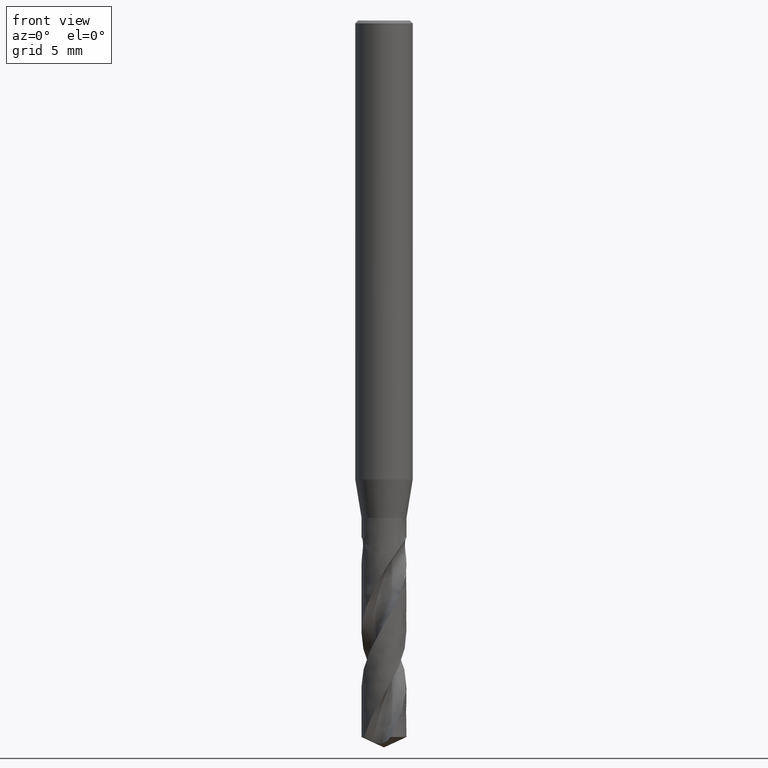
[diagram: clean part render]
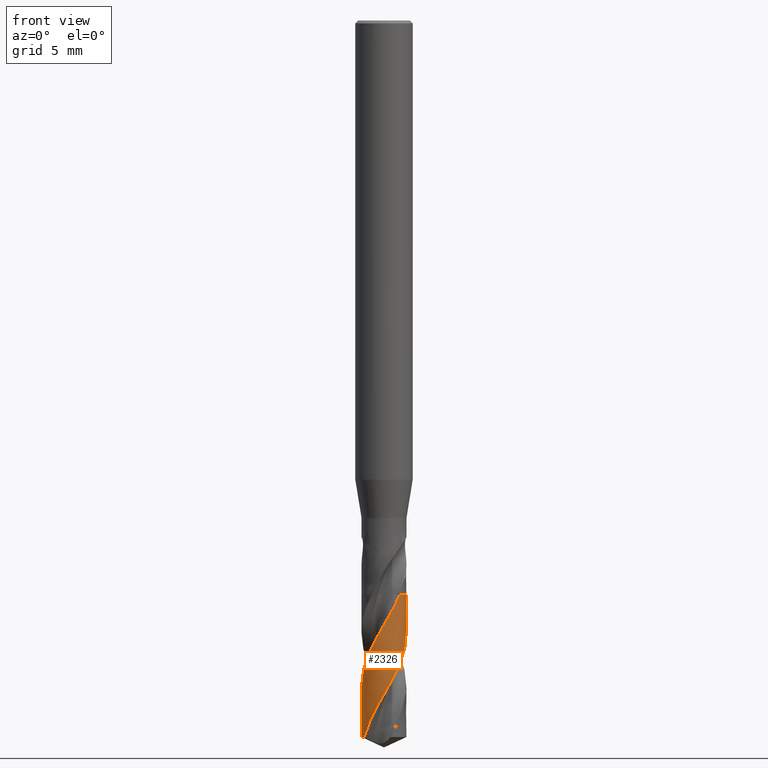
[diagram: same view with one face highlighted and labeled with its STEP entity id]
A machine part, front view. The second image highlights one B-rep face of the part: STEP entity #2326.
In plain terms, the highlighted face is a freeform B-spline surface patch.
Its self-contained STEP definition (entity closure, byte-faithful):
#1420 = VERTEX_POINT('', #1421);
#1421 = CARTESIAN_POINT('', (0.825852395738025, -0.83581865285106, -30.));
#1476 = EDGE_CURVE('', #1477, #1420, #1479, .T.);
#1477 = VERTEX_POINT('', #1478);
#1478 = CARTESIAN_POINT('', (0.655673400310535, 0.975047379425857, -30.));
#1479 = CIRCLE('', #1480, 1.175);
#1480 = AXIS2_PLACEMENT_3D('', #1481, #1482, #1483);
#1481 = CARTESIAN_POINT('', (1.12481983699639E-31, 1.83697019872103E-15, -30.));
#1482 = DIRECTION('', (3.74939945665464E-33, 6.12323399573677E-17, -1.));
#1483 = DIRECTION('', (-1., 6.12323399573677E-17, 0.));
#2115 = EDGE_CURVE('', #1477, #2116, #2118, .T.);
#2116 = VERTEX_POINT('', #2117);
#2117 = CARTESIAN_POINT('', (-1.0351719858161, -0.555917223857604, -37.4520885016679));
#2118 = B_SPLINE_CURVE_WITH_KNOTS('', 3, (#2119, #2120, #2121, #2122, #2123, #2124, #2125, #2126, #2127, #2128, #2129, #2130, #2131, #2132, #2133, #2134, #2135, #2136, #2137, #2138, #2139, #2140, #2141, #2142, #2143, #2144, #2145, #2146, #2147, #2148, #2149, #2150, #2151, #2152, #2153, #2154, #2155, #2156, #2157, #2158, #2159, #2160, #2161, #2162, #2163, #2164, #2165, #2166, #2167, #2168, #2169, #2170, #2171, #2172, #2173, #2174, #2175, #2176, #2177, #2178, #2179, #2180, #2181, #2182, #2183, #2184, #2185, #2186, #2187, #2188, #2189, #2190, #2191, #2192, #2193, #2194, #2195, #2196, #2197, #2198, #2199, #2200, #2201, #2202, #2203, #2204, #2205, #2206, #2207, #2208, #2209, #2210, #2211, #2212, #2213, #2214, #2215, #2216, #2217, #2218, #2219, #2220, #2221), .UNSPECIFIED., .F., .U., (4, 3, 3, 3, 3, 3, 3, 3, 3, 3, 3, 3, 3, 3, 3, 3, 3, 3, 3, 3, 3, 3, 3, 3, 3, 3, 3, 3, 3, 3, 3, 3, 3, 3, 4), (2.74565441674045, 2.80310890817261, 3.00021567324422, 3.19728634304258, 3.39431162390362, 3.59129442557749, 3.88659378424144, 4.18175092515038, 4.47676522535064, 4.77163437910697, 4.96831445902916, 5.05581256955857, 5.35226170314787, 5.64854010398423, 5.94465672318981, 6.24061870434471, 6.53643162886328, 6.83209969180109, 7.12762572924323, 7.42301139978342, 7.71825730224154, 8.0133629702863, 8.3083268328763, 8.60314612005843, 8.7343414350704, 8.77324932459564, 9.06968965949696, 9.36596147773749, 9.66207357193042, 9.95803295930708, 10.2538451189062, 10.5495141580033, 10.8450429204823, 11.1404330518665, 11.3293968610545), .UNSPECIFIED.);
#2119 = CARTESIAN_POINT('', (0.655673400310535, 0.975047379425857, -30.));
#2120 = CARTESIAN_POINT('', (0.663602854908384, 0.969715194992069, -30.0165973311651));
#2121 = CARTESIAN_POINT('', (0.671467327216319, 0.964286192596136, -30.0331956565611));
#2122 = CARTESIAN_POINT('', (0.679261130697518, 0.958764473853477, -30.0497952677698));
#2123 = CARTESIAN_POINT('', (0.705999012340712, 0.939821340046677, -30.1067428724783));
#2124 = CARTESIAN_POINT('', (0.731919582200778, 0.919777038527545, -30.1637243160657));
#2125 = CARTESIAN_POINT('', (0.756950907476951, 0.898693676215552, -30.2206954570386));
#2126 = CARTESIAN_POINT('', (0.781977648879375, 0.877614174804648, -30.2776561651434));
#2127 = CARTESIAN_POINT('', (0.80613416171335, 0.855478846977172, -30.3346248934047));
#2128 = CARTESIAN_POINT('', (0.829321273775411, 0.832376852671633, -30.3915797977245));
#2129 = CARTESIAN_POINT('', (0.852503045426457, 0.809280179172953, -30.4485215843004));
#2130 = CARTESIAN_POINT('', (0.874722414756018, 0.785210752467467, -30.5054769822475));
#2131 = CARTESIAN_POINT('', (0.89588977913168, 0.760267389572506, -30.5624242320048));
#2132 = CARTESIAN_POINT('', (0.917052579765933, 0.735329404534519, -30.6193592037799));
#2133 = CARTESIAN_POINT('', (0.937174675438246, 0.70950546853396, -30.6763093002334));
#2134 = CARTESIAN_POINT('', (0.956180289930555, 0.68289402775857, -30.7332476535386));
#2135 = CARTESIAN_POINT('', (0.984671842101108, 0.643000487168634, -30.8186046444612));
#2136 = CARTESIAN_POINT('', (1.01067268455528, 0.601305047623558, -30.9040057902662));
#2137 = CARTESIAN_POINT('', (1.03395489880117, 0.558177630548792, -30.9893699714052));
#2138 = CARTESIAN_POINT('', (1.05722590020781, 0.515070983869409, -31.0746930406967));
#2139 = CARTESIAN_POINT('', (1.07780382101155, 0.470491628456499, -31.1600613736328));
#2140 = CARTESIAN_POINT('', (1.09551075426737, 0.424830774879292, -31.2453919051734));
#2141 = CARTESIAN_POINT('', (1.11320911828823, 0.379192018780953, -31.3306811411738));
#2142 = CARTESIAN_POINT('', (1.12805608544297, 0.332429410952133, -31.4160153387091));
#2143 = CARTESIAN_POINT('', (1.1399239963091, 0.284953123581329, -31.5013120957043));
#2144 = CARTESIAN_POINT('', (1.15178606818688, 0.23750019444868, -31.5865668868662));
#2145 = CARTESIAN_POINT('', (1.16068341797689, 0.189288729444932, -31.6718664823875));
#2146 = CARTESIAN_POINT('', (1.16654063804424, 0.140740682787717, -31.7571287177992));
#2147 = CARTESIAN_POINT('', (1.17044745059583, 0.108358748038117, -31.8139993095905));
#2148 = CARTESIAN_POINT('', (1.17300525952883, 0.0758098704955289, -31.8708837021579));
#2149 = CARTESIAN_POINT('', (1.17420481506545, 0.0432209703399913, -31.9277576131039));
#2150 = CARTESIAN_POINT('', (1.17473846770059, 0.0287229734459014, -31.9530594115787));
#2151 = CARTESIAN_POINT('', (1.17500356426433, 0.0142150595871366, -31.9783626177847));
#2152 = CARTESIAN_POINT('', (1.17499996381022, -0.0002916264569291, -32.003665063362));
#2153 = CARTESIAN_POINT('', (1.17498776524392, -0.049441196464726, -32.0893913496062));
#2154 = CARTESIAN_POINT('', (1.1718856841896, -0.0986069735537323, -32.1751631632754));
#2155 = CARTESIAN_POINT('', (1.16572353211032, -0.147355511210923, -32.2608969634479));
#2156 = CARTESIAN_POINT('', (1.15956492897442, -0.196075973319584, -32.346581387299));
#2157 = CARTESIAN_POINT('', (1.15034390242509, -0.244426321514652, -32.43231124635));
#2158 = CARTESIAN_POINT('', (1.13814404672621, -0.291981384512253, -32.5180032052235));
#2159 = CARTESIAN_POINT('', (1.12595085270952, -0.339510480258711, -32.6036483723469));
#2160 = CARTESIAN_POINT('', (1.11077042334374, -0.386290646165431, -32.6893388181398));
#2161 = CARTESIAN_POINT('', (1.09273857007511, -0.431911353717923, -32.7749915290398));
#2162 = CARTESIAN_POINT('', (1.0747161334027, -0.477508237219927, -32.8605995103725));
#2163 = CARTESIAN_POINT('', (1.05382796579351, -0.521990626337881, -32.9462525933803));
#2164 = CARTESIAN_POINT('', (1.03025973300819, -0.564968921748755, -33.0318681001739));
#2165 = CARTESIAN_POINT('', (1.00670336999576, -0.607925571811383, -33.1174404880527));
#2166 = CARTESIAN_POINT('', (0.980447044360971, -0.649420889174039, -33.2030578588636));
#2167 = CARTESIAN_POINT('', (0.951723006865527, -0.689092387276804, -33.2886377133767));
#2168 = CARTESIAN_POINT('', (0.923013035724634, -0.728744457979853, -33.3741756588589));
#2169 = CARTESIAN_POINT('', (0.891810404864528, -0.766612337453501, -33.4597585577985));
#2170 = CARTESIAN_POINT('', (0.858389943865081, -0.802366315513868, -33.5453039557502));
#2171 = CARTESIAN_POINT('', (0.824985536535725, -0.838103118988635, -33.6308082615817));
#2172 = CARTESIAN_POINT('', (0.789333814163044, -0.871761907536438, -33.7163574775691));
#2173 = CARTESIAN_POINT('', (0.75174773902373, -0.903050572710469, -33.8018692677189));
#2174 = CARTESIAN_POINT('', (0.714179516256984, -0.934324376611921, -33.8873404420732));
#2175 = CARTESIAN_POINT('', (0.674643269313873, -0.963259881043804, -33.9728563939696));
#2176 = CARTESIAN_POINT('', (0.633485238157986, -0.989606716345396, -34.0583350729415));
#2177 = CARTESIAN_POINT('', (0.592346681809613, -1.0159410850753, -34.1437733058384));
#2178 = CARTESIAN_POINT('', (0.549548865328275, -1.03971421216677, -34.2292561351838));
#2179 = CARTESIAN_POINT('', (0.505465883805178, -1.06072109449612, -34.3147018669099));
#2180 = CARTESIAN_POINT('', (0.461403840594862, -1.08171799908219, -34.4001070140522));
#2181 = CARTESIAN_POINT('', (0.416015949251535, -1.09997126805017, -34.4855566048999));
#2182 = CARTESIAN_POINT('', (0.369698085085239, -1.11532431421731, -34.570969204936));
#2183 = CARTESIAN_POINT('', (0.3234024777798, -1.13066998287216, -34.6563407621393));
#2184 = CARTESIAN_POINT('', (0.276133920670117, -1.1431327866414, -34.7417567125524));
#2185 = CARTESIAN_POINT('', (0.228303466404686, -1.15260683983208, -34.8271356651254));
#2186 = CARTESIAN_POINT('', (0.180496456053276, -1.16207624935186, -34.9124727695317));
#2187 = CARTESIAN_POINT('', (0.132083248210471, -1.16856875152918, -34.9978542733538));
#2188 = CARTESIAN_POINT('', (0.0834835794019766, -1.17203049959059, -35.0831988094174));
#2189 = CARTESIAN_POINT('', (0.0618566060796062, -1.17357098607555, -35.1211773399281));
#2190 = CARTESIAN_POINT('', (0.0401862731664143, -1.17451268517642, -35.1591602039779));
#2191 = CARTESIAN_POINT('', (0.0185098444803045, -1.17485419761659, -35.1971402469231));
#2192 = CARTESIAN_POINT('', (0.0120813825146928, -1.17495547812567, -35.2084037841534));
#2193 = CARTESIAN_POINT('', (0.0056521499338478, -1.17500399392782, -35.2196674796092));
#2194 = CARTESIAN_POINT('', (-0.000776887873657872, -1.17499974316815, -35.2309311427222));
#2195 = CARTESIAN_POINT('', (-0.0497599127564091, -1.17496735650742, -35.3167493175497));
#2196 = CARTESIAN_POINT('', (-0.0987575252758473, -1.17186603598772, -35.4026124644257));
#2197 = CARTESIAN_POINT('', (-0.147340931727059, -1.16572537496522, -35.4884381121428));
#2198 = CARTESIAN_POINT('', (-0.195896720096447, -1.1595882047082, -35.5742149707788));
#2199 = CARTESIAN_POINT('', (-0.244084572710808, -1.15040938810638, -35.6600367838169));
#2200 = CARTESIAN_POINT('', (-0.29148405534281, -1.13827151659035, -35.7458211649225));
#2201 = CARTESIAN_POINT('', (-0.338857984288118, -1.12614018876106, -35.831559298536));
#2202 = CARTESIAN_POINT('', (-0.385488966169338, -1.11104159233151, -35.9173422442213));
#2203 = CARTESIAN_POINT('', (-0.430970978427078, -1.09310979126245, -36.0030879314922));
#2204 = CARTESIAN_POINT('', (-0.476429535333193, -1.07518723773277, -36.0887893991882));
#2205 = CARTESIAN_POINT('', (-0.520783263021616, -1.05441746810387, -36.1745354714805));
#2206 = CARTESIAN_POINT('', (-0.563646597158908, -1.03098376006183, -36.2602444896775));
#2207 = CARTESIAN_POINT('', (-0.606488608527968, -1.007561709338, -36.3459108711183));
#2208 = CARTESIAN_POINT('', (-0.647882377679493, -0.98145614798015, -36.4316216836224));
#2209 = CARTESIAN_POINT('', (-0.687468838816475, -0.952896424411557, -36.5172955629074));
#2210 = CARTESIAN_POINT('', (-0.727036147143105, -0.924350518672432, -36.6029279912642));
#2211 = CARTESIAN_POINT('', (-0.764835340285738, -0.893325848351839, -36.6886048083578));
#2212 = CARTESIAN_POINT('', (-0.800539645321133, -0.860093760161711, -36.7742446607947));
#2213 = CARTESIAN_POINT('', (-0.836227010878613, -0.826877438535963, -36.8598438824341));
#2214 = CARTESIAN_POINT('', (-0.869854843877396, -0.791424780542634, -36.9454875310198));
#2215 = CARTESIAN_POINT('', (-0.901133553984696, -0.754044639184516, -37.0310942255835));
#2216 = CARTESIAN_POINT('', (-0.932397591402298, -0.71668203266761, -37.116660762466));
#2217 = CARTESIAN_POINT('', (-0.961343768765162, -0.67735904494707, -37.2022716350991));
#2218 = CARTESIAN_POINT('', (-0.987723614642547, -0.636417363903168, -37.2878456914494));
#2219 = CARTESIAN_POINT('', (-1.00459904693754, -0.610226590472917, -37.3425882096908));
#2220 = CARTESIAN_POINT('', (-1.02043365602099, -0.583361428618433, -37.3973429320634));
#2221 = CARTESIAN_POINT('', (-1.0351719858161, -0.555917223857604, -37.4520885016679));
#2326 = ADVANCED_FACE('', (#2327), #2430, .T.);
#2327 = FACE_OUTER_BOUND('', #2328, .T.);
#2328 = EDGE_LOOP('', (#2329, #2330, #2357, #2414, #2422, #2429));
#2329 = ORIENTED_EDGE('', *, *, #1476, .T.);
#2330 = ORIENTED_EDGE('', *, *, #2331, .T.);
#2331 = EDGE_CURVE('', #1420, #2332, #2334, .T.);
#2332 = VERTEX_POINT('', #2333);
#2333 = CARTESIAN_POINT('', (0.266972097908336, -1.14426871797599, -31.1212727796582));
#2334 = B_SPLINE_CURVE_WITH_KNOTS('', 3, (#2335, #2336, #2337, #2338, #2339, #2340, #2341, #2342, #2343, #2344, #2345, #2346, #2347, #2348, #2349, #2350, #2351, #2352, #2353, #2354, #2355, #2356), .UNSPECIFIED., .F., .U., (4, 3, 3, 3, 3, 3, 3, 4), (0.81353262380367, 0.875933690164871, 1.07293763319324, 1.26990593108701, 1.46682811431797, 1.66370732220614, 1.95877341215135, 2.10770555532022), .UNSPECIFIED.);
#2335 = CARTESIAN_POINT('', (0.825852395738025, -0.83581865285106, -30.));
#2336 = CARTESIAN_POINT('', (0.818445904757134, -0.843136829227857, -30.0180067479815));
#2337 = CARTESIAN_POINT('', (0.810942125325879, -0.850356474669242, -30.0360158168574));
#2338 = CARTESIAN_POINT('', (0.803348929654479, -0.857470406033351, -30.0540266510148));
#2339 = CARTESIAN_POINT('', (0.779376751378024, -0.87992951788651, -30.1108879444692));
#2340 = CARTESIAN_POINT('', (0.754494805929052, -0.901353562566952, -30.1677910714515));
#2341 = CARTESIAN_POINT('', (0.728767968576534, -0.921695311899127, -30.2246824311101));
#2342 = CARTESIAN_POINT('', (0.703045786138867, -0.942033380673534, -30.2815634970652));
#2343 = CARTESIAN_POINT('', (0.676456550652546, -0.961305208071376, -30.3384502827728));
#2344 = CARTESIAN_POINT('', (0.649111758976148, -0.97942785561719, -30.3953234345152));
#2345 = CARTESIAN_POINT('', (0.621773369324144, -0.997546260247825, -30.452183270987));
#2346 = CARTESIAN_POINT('', (0.59367261008476, -1.01452090914273, -30.5090575529595));
#2347 = CARTESIAN_POINT('', (0.564925686131962, -1.03028344116963, -30.5659246092053));
#2348 = CARTESIAN_POINT('', (0.536185035768512, -1.04604253325793, -30.6227792550605));
#2349 = CARTESIAN_POINT('', (0.506783585366919, -1.06059854218703, -30.6796498401915));
#2350 = CARTESIAN_POINT('', (0.476833319899476, -1.07389710169719, -30.7365089171754));
#2351 = CARTESIAN_POINT('', (0.431946367035874, -1.09382787040892, -30.8217245461059));
#2352 = CARTESIAN_POINT('', (0.385791985282001, -1.11094548255398, -30.9069859250054));
#2353 = CARTESIAN_POINT('', (0.338781901869354, -1.12510080569039, -30.9922118387715));
#2354 = CARTESIAN_POINT('', (0.315053955108365, -1.13224558675401, -31.0352289065514));
#2355 = CARTESIAN_POINT('', (0.291099473520367, -1.13863950170627, -31.0782528639844));
#2356 = CARTESIAN_POINT('', (0.266972097908325, -1.14426871797599, -31.1212727796582));
#2357 = ORIENTED_EDGE('', *, *, #2358, .T.);
#2358 = EDGE_CURVE('', #2332, #2359, #2361, .T.);
#2359 = VERTEX_POINT('', #2360);
#2360 = CARTESIAN_POINT('', (-1.175, 2.20347321615849E-15, -34.8104485014395));
#2361 = B_SPLINE_CURVE_WITH_KNOTS('', 3, (#2362, #2363, #2364, #2365, #2366, #2367, #2368, #2369, #2370, #2371, #2372, #2373, #2374, #2375, #2376, #2377, #2378, #2379, #2380, #2381, #2382, #2383, #2384, #2385, #2386, #2387, #2388, #2389, #2390, #2391, #2392, #2393, #2394, #2395, #2396, #2397, #2398, #2399, #2400, #2401, #2402, #2403, #2404, #2405, #2406, #2407, #2408, #2409, #2410, #2411, #2412, #2413), .UNSPECIFIED., .F., .U., (4, 3, 3, 3, 3, 3, 3, 3, 3, 3, 3, 3, 3, 3, 3, 3, 3, 4), (0., 0.2948437566843, 0.491511732513985, 0.5304193886418, 0.55636724147506, 0.852812760780786, 1.14908598698337, 1.44519615523868, 1.74115064617084, 2.03695524308472, 2.33261423586314, 2.62813058028435, 2.92350611585028, 3.21874159822449, 3.51383669492109, 3.80878993747729, 4.10359860910891, 4.25180728050751), .UNSPECIFIED.);
#2362 = CARTESIAN_POINT('', (0.266972097908336, -1.14426871797599, -31.1212727796582));
#2363 = CARTESIAN_POINT('', (0.219206679960101, -1.15541298298715, -31.2064401134495));
#2364 = CARTESIAN_POINT('', (0.170730185221388, -1.1635633577204, -31.2916555218373));
#2365 = CARTESIAN_POINT('', (0.121969695153951, -1.16865238350175, -31.3768360417025));
#2366 = CARTESIAN_POINT('', (0.0894452591955053, -1.17204688779995, -31.4336535256824));
#2367 = CARTESIAN_POINT('', (0.056777262005641, -1.17408263088166, -31.4904863675599));
#2368 = CARTESIAN_POINT('', (0.0240934390361651, -1.1747529553891, -31.5473098350783));
#2369 = CARTESIAN_POINT('', (0.0176274603242064, -1.17488556851699, -31.5585514616058));
#2370 = CARTESIAN_POINT('', (0.0111605231422456, -1.17496479273383, -31.5697932934221));
#2371 = CARTESIAN_POINT('', (0.0046936248493249, -1.17499062544591, -31.5810351434953));
#2372 = CARTESIAN_POINT('', (0.000380794370893695, -1.17500785350532, -31.5885324306697));
#2373 = CARTESIAN_POINT('', (-0.00393205940251527, -1.17500133539658, -31.596029796608));
#2374 = CARTESIAN_POINT('', (-0.00824464090066056, -1.1749710744935, -31.6035271857281));
#2375 = CARTESIAN_POINT('', (-0.0575144386747276, -1.17462535382113, -31.6891823428389));
#2376 = CARTESIAN_POINT('', (-0.106774412330744, -1.17117443136474, -31.7748864245607));
#2377 = CARTESIAN_POINT('', (-0.155588328871752, -1.16465328399438, -31.8605550572337));
#2378 = CARTESIAN_POINT('', (-0.204373874934512, -1.15813592669215, -31.9461738995958));
#2379 = CARTESIAN_POINT('', (-0.252761010894099, -1.14854563179498, -32.0318414369643));
#2380 = CARTESIAN_POINT('', (-0.300322446314365, -1.13597157897535, -32.1174737595693));
#2381 = CARTESIAN_POINT('', (-0.347857705660172, -1.12340444645448, -32.203058953276));
#2382 = CARTESIAN_POINT('', (-0.394614322357285, -1.10784465042416, -32.288692569991));
#2383 = CARTESIAN_POINT('', (-0.44018049056721, -1.08943386018816, -32.3742912043273));
#2384 = CARTESIAN_POINT('', (-0.485722702763958, -1.0710327492636, -32.4598448359326));
#2385 = CARTESIAN_POINT('', (-0.530120022605275, -1.04976577026104, -32.5454467109615));
#2386 = CARTESIAN_POINT('', (-0.572982836860086, -1.0258243849041, -32.6310136851819));
#2387 = CARTESIAN_POINT('', (-0.61582394210334, -1.00189512529813, -32.7165373217338));
#2388 = CARTESIAN_POINT('', (-0.657173416990552, -0.97527113981012, -32.8021091729448));
#2389 = CARTESIAN_POINT('', (-0.696670127434663, -0.946190114903017, -32.8876461008021));
#2390 = CARTESIAN_POINT('', (-0.736147396381118, -0.917123404572272, -32.9731409247484));
#2391 = CARTESIAN_POINT('', (-0.773811314601325, -0.885574443732405, -33.058683942628));
#2392 = CARTESIAN_POINT('', (-0.809334492612241, -0.851823150112794, -33.1441921138021));
#2393 = CARTESIAN_POINT('', (-0.844840531543643, -0.818088140681069, -33.2296590293389));
#2394 = CARTESIAN_POINT('', (-0.878241593321828, -0.78212092850819, -33.3151739535754));
#2395 = CARTESIAN_POINT('', (-0.90924849040322, -0.74423933159936, -33.4006542452359));
#2396 = CARTESIAN_POINT('', (-0.940240613189497, -0.706375784671174, -33.4860938068919));
#2397 = CARTESIAN_POINT('', (-0.968870418189948, -0.666563567071434, -33.5715811104992));
#2398 = CARTESIAN_POINT('', (-0.994891064340362, -0.625153397251986, -33.6570340353538));
#2399 = CARTESIAN_POINT('', (-1.02089937272375, -0.583762862188145, -33.742446442449));
#2400 = CARTESIAN_POINT('', (-1.04432595216404, -0.540736204557977, -33.8279063625746));
#2401 = CARTESIAN_POINT('', (-1.06497003597386, -0.496451228700108, -33.9133320642139));
#2402 = CARTESIAN_POINT('', (-1.08560430343752, -0.452187310529118, -33.9987171455831));
#2403 = CARTESIAN_POINT('', (-1.10347846935287, -0.406624006126447, -34.084149671114));
#2404 = CARTESIAN_POINT('', (-1.11844090422622, -0.360159608720455, -34.1695479432418));
#2405 = CARTESIAN_POINT('', (-1.13339614655939, -0.313717547053781, -34.2549051638623));
#2406 = CARTESIAN_POINT('', (-1.14545656666857, -0.26633159394498, -34.3403098695409));
#2407 = CARTESIAN_POINT('', (-1.15452167097029, -0.218414082101146, -34.4256803294193));
#2408 = CARTESIAN_POINT('', (-1.16358233202365, -0.170520056959578, -34.5110089450847));
#2409 = CARTESIAN_POINT('', (-1.16965908831392, -0.122050323260155, -34.5963849317343));
#2410 = CARTESIAN_POINT('', (-1.17270359804954, -0.0734252757706661, -34.68172684167));
#2411 = CARTESIAN_POINT('', (-1.17423415934708, -0.0489800868105677, -34.7246306376003));
#2412 = CARTESIAN_POINT('', (-1.175, -0.024487180425894, -34.7675413507394));
#2413 = CARTESIAN_POINT('', (-1.175, 1.37601011811755E-15, -34.8104485014395));
#2414 = ORIENTED_EDGE('', *, *, #2415, .T.);
#2415 = EDGE_CURVE('', #2359, #2416, #2418, .T.);
#2416 = VERTEX_POINT('', #2417);
#2417 = CARTESIAN_POINT('', (-1.175, 2.36522701469745E-15, -37.4520885016679));
#2418 = LINE('', #2419, #2420);
#2419 = CARTESIAN_POINT('', (-1.175, 2.20347321615849E-15, -34.8104485014395));
#2420 = VECTOR('', #2421, 2.64164000022838);
#2421 = DIRECTION('', (0., 1.61753798538965E-16, -2.64164000022838));
#2422 = ORIENTED_EDGE('', *, *, #2423, .F.);
#2423 = EDGE_CURVE('', #2116, #2416, #2424, .T.);
#2424 = CIRCLE('', #2425, 1.175);
#2425 = AXIS2_PLACEMENT_3D('', #2426, #2427, #2428);
#2426 = CARTESIAN_POINT('', (1.40422840278735E-31, 2.29327901524755E-15, -37.4520885016679));
#2427 = DIRECTION('', (3.74939945665464E-33, 6.12323399573677E-17, -1.));
#2428 = DIRECTION('', (-1., 6.12323399573677E-17, 0.));
#2429 = ORIENTED_EDGE('', *, *, #2115, .F.);
#2430 = (
   BOUNDED_SURFACE ()
   B_SPLINE_SURFACE (2, 1, ((#2431, #2432), (#2433, #2434), (#2435, #2436), (#2437, #2438), (#2439, #2440), (#2441, #2442), (#2443, #2444)), .UNSPECIFIED., .F., .F., .U.)
   B_SPLINE_SURFACE_WITH_KNOTS ((3, 2, 2, 3), (2, 2), (2.5524122351971, 3.69137136796801, 5.53705705195201, 7.38274273593602), (0.349281268601569, 1.), .UNSPECIFIED.)
   GEOMETRIC_REPRESENTATION_ITEM ()
   RATIONAL_B_SPLINE_SURFACE (((0.861584930755521, 0.861584930755521), (0.819257737441962, 0.819257737441962), (1., 1.), (0.707106781186548, 0.707106781186548), (1., 1.), (0.707106781186548, 0.707106781186548), (1., 1.)))
   REPRESENTATION_ITEM ('')
   SURFACE ()
);
#2431 = CARTESIAN_POINT('', (0.655673400310534, 0.975047379425854, -30.));
#2432 = CARTESIAN_POINT('', (0.655673400310534, 0.975047379425855, -37.4520885016679));
#2433 = CARTESIAN_POINT('', (1.175, 0.625824721455526, -30.));
#2434 = CARTESIAN_POINT('', (1.175, 0.625824721455526, -37.4520885016679));
#2435 = CARTESIAN_POINT('', (1.175, 1.90891819817094E-15, -30.));
#2436 = CARTESIAN_POINT('', (1.175, 2.36522701469745E-15, -37.4520885016679));
#2437 = CARTESIAN_POINT('', (1.175, -1.175, -30.));
#2438 = CARTESIAN_POINT('', (1.175, -1.175, -37.4520885016679));
#2439 = CARTESIAN_POINT('', (1.43895998899814E-16, -1.175, -30.));
#2440 = CARTESIAN_POINT('', (1.43895998899814E-16, -1.175, -37.4520885016679));
#2441 = CARTESIAN_POINT('', (-1.175, -1.175, -30.));
#2442 = CARTESIAN_POINT('', (-1.175, -1.175, -37.4520885016679));
#2443 = CARTESIAN_POINT('', (-1.175, 1.90891819817094E-15, -30.));
#2444 = CARTESIAN_POINT('', (-1.175, 2.36522701469745E-15, -37.4520885016679));